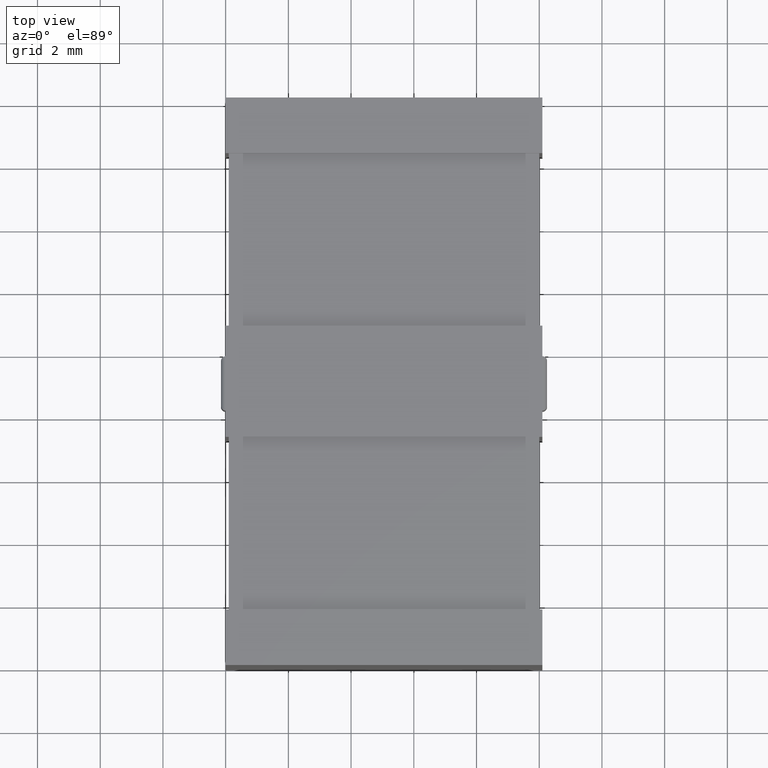
[diagram: clean part render]
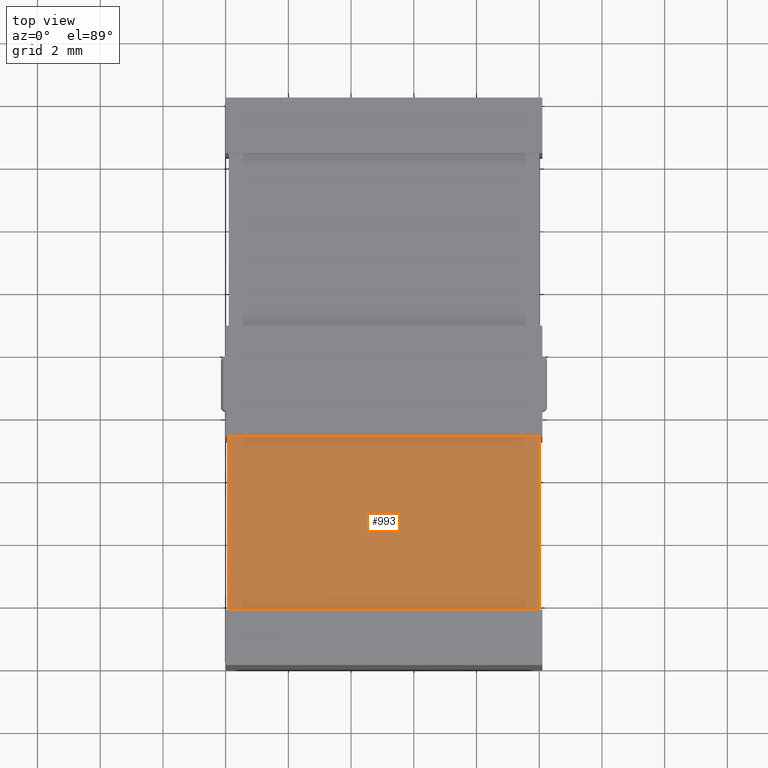
[diagram: same view with one face highlighted and labeled with its STEP entity id]
A machine part, top view. The second image highlights one B-rep face of the part: STEP entity #993.
In plain terms, the highlighted planar face has unit normal (-0, 0, 1).
Its self-contained STEP definition (entity closure, byte-faithful):
#55 = DIRECTION ( 'NONE',  ( 0.0000000000000000000, -1.000000000000000000, 0.0000000000000000000 ) ) ;
#82 = CARTESIAN_POINT ( 'NONE',  ( 1.325533202461112200E-015, 7.276200000000000200, 10.24999999999999800 ) ) ;
#160 = VECTOR ( 'NONE', #55, 1000.000000000000000 ) ;
#186 = VERTEX_POINT ( 'NONE', #2002 ) ;
#266 = VECTOR ( 'NONE', #355, 1000.000000000000000 ) ;
#277 = LINE ( 'NONE', #82, #266 ) ;
#317 = VERTEX_POINT ( 'NONE', #2890 ) ;
#355 = DIRECTION ( 'NONE',  ( -1.000000000000000000, -0.0000000000000000000, -0.0000000000000000000 ) ) ;
#546 = VERTEX_POINT ( 'NONE', #1670 ) ;
#558 = CARTESIAN_POINT ( 'NONE',  ( 0.0000000000000000000, 0.0000000000000000000, 10.24999999999999800 ) ) ;
#573 = FACE_OUTER_BOUND ( 'NONE', #3245, .T. ) ;
#576 = CARTESIAN_POINT ( 'NONE',  ( 10.00000000000000000, 7.276200000000000200, 10.24999999999999800 ) ) ;
#745 = LINE ( 'NONE', #2164, #3366 ) ;
#860 = CARTESIAN_POINT ( 'NONE',  ( 1.999382857223951600E-015, 1.773799999999999800, 10.24999999999999800 ) ) ;
#876 = ORIENTED_EDGE ( 'NONE', *, *, #2850, .T. ) ;
#968 = VECTOR ( 'NONE', #2433, 1000.000000000000000 ) ;
#977 = ORIENTED_EDGE ( 'NONE', *, *, #982, .F. ) ;
#982 = EDGE_CURVE ( 'NONE', #546, #317, #2663, .T. ) ;
#993 = ADVANCED_FACE ( 'NONE', ( #573 ), #1097, .T. ) ;
#1097 = PLANE ( 'NONE',  #1152 ) ;
#1152 = AXIS2_PLACEMENT_3D ( 'NONE', #558, #2160, #2405 ) ;
#1650 = DIRECTION ( 'NONE',  ( 0.0000000000000000000, -1.000000000000000000, 0.0000000000000000000 ) ) ;
#1670 = CARTESIAN_POINT ( 'NONE',  ( 10.00000000000000000, 7.276200000000000200, 10.24999999999999800 ) ) ;
#1683 = LINE ( 'NONE', #860, #968 ) ;
#1930 = ORIENTED_EDGE ( 'NONE', *, *, #2868, .T. ) ;
#1965 = CARTESIAN_POINT ( 'NONE',  ( 0.1000000000000000100, 7.276200000000000200, 10.24999999999999800 ) ) ;
#2002 = CARTESIAN_POINT ( 'NONE',  ( 0.1000000000000000100, 1.773800000000000000, 10.24999999999999800 ) ) ;
#2160 = DIRECTION ( 'NONE',  ( -0.0000000000000000000, 0.0000000000000000000, 1.000000000000000000 ) ) ;
#2164 = CARTESIAN_POINT ( 'NONE',  ( 0.1000000000000000100, 7.276200000000000200, 10.24999999999999800 ) ) ;
#2297 = VERTEX_POINT ( 'NONE', #1965 ) ;
#2405 = DIRECTION ( 'NONE',  ( 1.000000000000000000, 0.0000000000000000000, 0.0000000000000000000 ) ) ;
#2433 = DIRECTION ( 'NONE',  ( 1.000000000000000000, 0.0000000000000000000, 0.0000000000000000000 ) ) ;
#2663 = LINE ( 'NONE', #576, #160 ) ;
#2842 = EDGE_CURVE ( 'NONE', #2297, #186, #745, .T. ) ;
#2850 = EDGE_CURVE ( 'NONE', #186, #317, #1683, .T. ) ;
#2868 = EDGE_CURVE ( 'NONE', #546, #2297, #277, .T. ) ;
#2890 = CARTESIAN_POINT ( 'NONE',  ( 10.00000000000000000, 1.773800000000000000, 10.24999999999999800 ) ) ;
#3069 = ORIENTED_EDGE ( 'NONE', *, *, #2842, .T. ) ;
#3245 = EDGE_LOOP ( 'NONE', ( #1930, #3069, #876, #977 ) ) ;
#3366 = VECTOR ( 'NONE', #1650, 1000.000000000000000 ) ;